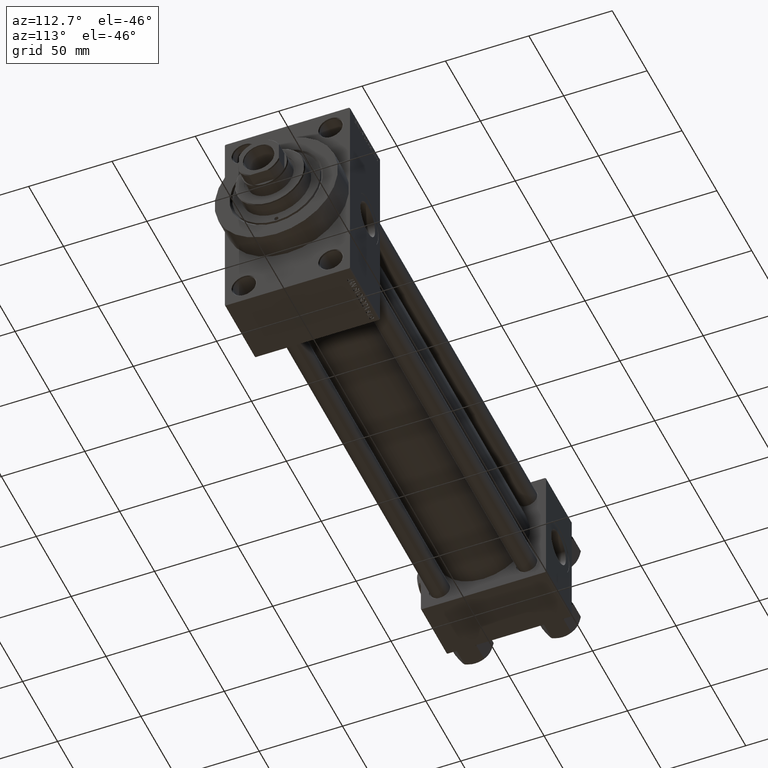
[diagram: clean part render]
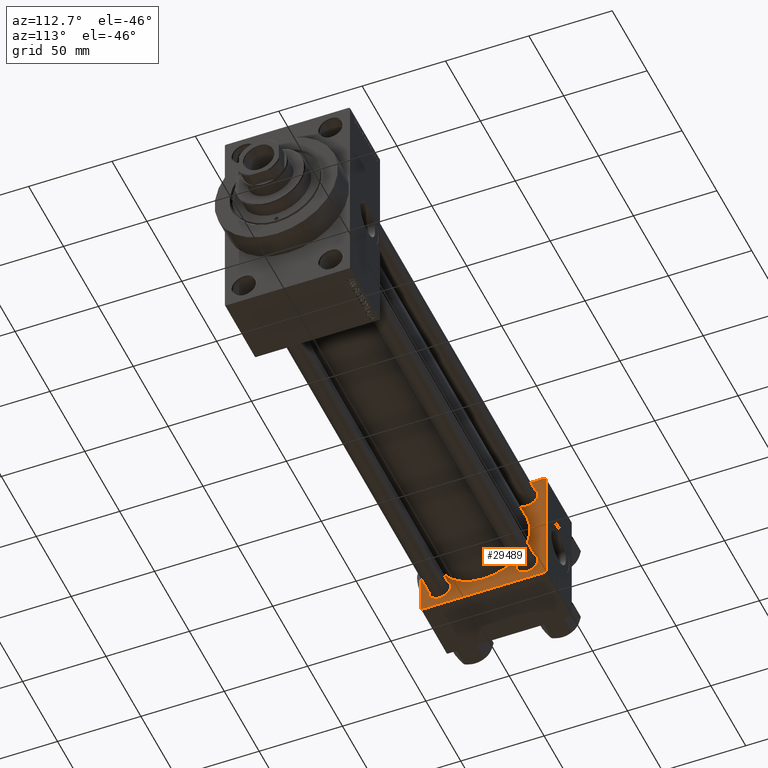
[diagram: same view with one face highlighted and labeled with its STEP entity id]
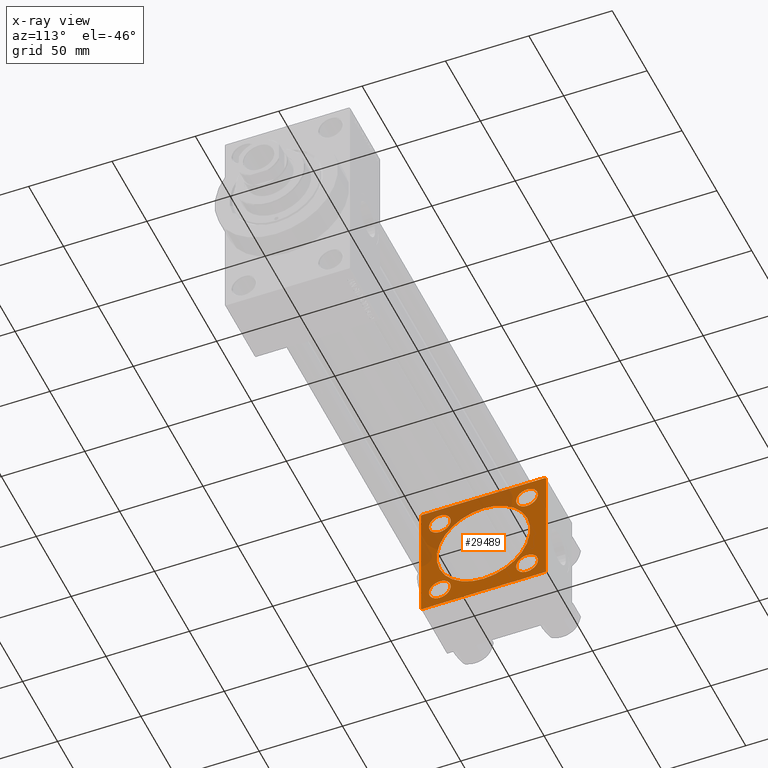
[diagram: x-ray of the same camera — body ghosted, the highlighted face saturated]
A machine part, auxiliary view. The second image highlights one B-rep face of the part: STEP entity #29489.
The next image is the same camera in x-ray: the body ghosted, the highlighted face saturated — about 32% of this face is hidden behind the body in this view.
In plain terms, the highlighted planar face has unit normal (-1, 0, 0).
Its self-contained STEP definition (entity closure, byte-faithful):
#659 = CARTESIAN_POINT ( 'NONE',  ( 37.00000000000000000, 37.49999999999999289, 37.50000000000000000 ) ) ;
#803 = LINE ( 'NONE', #44344, #23737 ) ;
#834 = EDGE_CURVE ( 'NONE', #8049, #10338, #43186, .T. ) ;
#1543 = EDGE_LOOP ( 'NONE', ( #32420, #48982 ) ) ;
#1641 = VECTOR ( 'NONE', #25768, 1000.000000000000000 ) ;
#1668 = CIRCLE ( 'NONE', #27077, 6.500000000000064837 ) ;
#2424 = DIRECTION ( 'NONE',  ( -1.000000000000000000, 0.000000000000000000, -0.000000000000000000 ) ) ;
#2526 = DIRECTION ( 'NONE',  ( -1.000000000000000000, 0.000000000000000000, -0.000000000000000000 ) ) ;
#2807 = CARTESIAN_POINT ( 'NONE',  ( 37.00000000000000000, 26.14999999999999858, 19.64999999999988489 ) ) ;
#3079 = CARTESIAN_POINT ( 'NONE',  ( 37.00000000000000000, 37.49999999999999289, -37.50000000000000000 ) ) ;
#4091 = DIRECTION ( 'NONE',  ( 0.000000000000000000, -1.000000000000000000, -9.251858538542971581E-17 ) ) ;
#4112 = CARTESIAN_POINT ( 'NONE',  ( 37.00000000000000711, -2.602085213965210642E-15, 0.000000000000000000 ) ) ;
#4435 = DIRECTION ( 'NONE',  ( 0.000000000000000000, 0.000000000000000000, 1.000000000000000000 ) ) ;
#4458 = VERTEX_POINT ( 'NONE', #32016 ) ;
#4847 = ORIENTED_EDGE ( 'NONE', *, *, #28262, .F. ) ;
#4908 = AXIS2_PLACEMENT_3D ( 'NONE', #14732, #45483, #21905 ) ;
#5409 = ORIENTED_EDGE ( 'NONE', *, *, #29959, .T. ) ;
#5530 = CARTESIAN_POINT ( 'NONE',  ( 37.00000000000000000, -37.00000000000002132, -37.50000000000000711 ) ) ;
#5825 = EDGE_LOOP ( 'NONE', ( #14337, #42625 ) ) ;
#6109 = DIRECTION ( 'NONE',  ( 0.000000000000000000, 0.000000000000000000, 1.000000000000000000 ) ) ;
#6264 = CARTESIAN_POINT ( 'NONE',  ( 37.00000000000000000, 26.14999999999999858, 26.15000000000000213 ) ) ;
#6298 = PLANE ( 'NONE',  #4908 ) ;
#6549 = FACE_BOUND ( 'NONE', #31008, .T. ) ;
#6802 = FACE_BOUND ( 'NONE', #1543, .T. ) ;
#7054 = EDGE_CURVE ( 'NONE', #31821, #33223, #47402, .T. ) ;
#7060 = EDGE_CURVE ( 'NONE', #27539, #15755, #39263, .T. ) ;
#7453 = LINE ( 'NONE', #14379, #24921 ) ;
#8049 = VERTEX_POINT ( 'NONE', #27716 ) ;
#8897 = CARTESIAN_POINT ( 'NONE',  ( 37.00000000000000000, -26.14999999999999147, -19.64999999999995239 ) ) ;
#9360 = ORIENTED_EDGE ( 'NONE', *, *, #22431, .T. ) ;
#9462 = DIRECTION ( 'NONE',  ( 0.000000000000000000, 0.000000000000000000, 1.000000000000000000 ) ) ;
#9575 = VECTOR ( 'NONE', #16528, 1000.000000000000000 ) ;
#10141 = FACE_BOUND ( 'NONE', #5825, .T. ) ;
#10198 = DIRECTION ( 'NONE',  ( 0.000000000000000000, 0.000000000000000000, 1.000000000000000000 ) ) ;
#10338 = VERTEX_POINT ( 'NONE', #21568 ) ;
#10553 = EDGE_LOOP ( 'NONE', ( #4847, #16266, #22756, #38840, #12642, #5409, #14144, #23131 ) ) ;
#10618 = ORIENTED_EDGE ( 'NONE', *, *, #13335, .T. ) ;
#11062 = VERTEX_POINT ( 'NONE', #26641 ) ;
#11078 = VERTEX_POINT ( 'NONE', #31230 ) ;
#11853 = DIRECTION ( 'NONE',  ( 0.000000000000000000, 0.000000000000000000, 1.000000000000000000 ) ) ;
#12267 = EDGE_CURVE ( 'NONE', #37107, #23136, #1668, .T. ) ;
#12357 = ORIENTED_EDGE ( 'NONE', *, *, #12267, .T. ) ;
#12642 = ORIENTED_EDGE ( 'NONE', *, *, #26712, .T. ) ;
#13169 = AXIS2_PLACEMENT_3D ( 'NONE', #40031, #32349, #4435 ) ;
#13335 = EDGE_CURVE ( 'NONE', #23136, #37107, #35269, .T. ) ;
#13718 = FACE_OUTER_BOUND ( 'NONE', #10553, .T. ) ;
#14144 = ORIENTED_EDGE ( 'NONE', *, *, #27709, .T. ) ;
#14337 = ORIENTED_EDGE ( 'NONE', *, *, #40085, .F. ) ;
#14379 = CARTESIAN_POINT ( 'NONE',  ( 37.00000000000000000, 36.99999999999999289, 37.50000000000000000 ) ) ;
#14732 = CARTESIAN_POINT ( 'NONE',  ( 37.00000000000000000, 0.000000000000000000, 0.000000000000000000 ) ) ;
#14857 = LINE ( 'NONE', #3079, #28570 ) ;
#14952 = EDGE_CURVE ( 'NONE', #21771, #4458, #28781, .T. ) ;
#15131 = LINE ( 'NONE', #15373, #37555 ) ;
#15373 = CARTESIAN_POINT ( 'NONE',  ( 37.00000000000000000, 37.49999999999999289, 37.50000000000000000 ) ) ;
#15381 = CARTESIAN_POINT ( 'NONE',  ( 37.00000000000000000, 26.14999999999999858, -19.64999999999988844 ) ) ;
#15571 = DIRECTION ( 'NONE',  ( 0.000000000000000000, 0.000000000000000000, 1.000000000000000000 ) ) ;
#15755 = VERTEX_POINT ( 'NONE', #15381 ) ;
#15811 = AXIS2_PLACEMENT_3D ( 'NONE', #6264, #2424, #11853 ) ;
#16096 = EDGE_CURVE ( 'NONE', #15755, #27539, #19810, .T. ) ;
#16138 = DIRECTION ( 'NONE',  ( 0.000000000000000000, 0.000000000000000000, 1.000000000000000000 ) ) ;
#16266 = ORIENTED_EDGE ( 'NONE', *, *, #27593, .T. ) ;
#16528 = DIRECTION ( 'NONE',  ( 0.000000000000000000, 0.000000000000000000, -1.000000000000000000 ) ) ;
#16917 = AXIS2_PLACEMENT_3D ( 'NONE', #23827, #35121, #47890 ) ;
#17291 = CARTESIAN_POINT ( 'NONE',  ( 37.00000000000000000, -26.14999999999999147, 32.65000000000007674 ) ) ;
#17866 = CARTESIAN_POINT ( 'NONE',  ( 37.00000000000000000, 37.49999999999999289, -36.99999999999998579 ) ) ;
#17890 = CARTESIAN_POINT ( 'NONE',  ( 37.00000000000000000, -26.14999999999999147, 26.15000000000000924 ) ) ;
#17953 = VECTOR ( 'NONE', #45015, 1000.000000000000114 ) ;
#18013 = VERTEX_POINT ( 'NONE', #29498 ) ;
#18393 = CARTESIAN_POINT ( 'NONE',  ( 37.00000000000000711, -2.602085213965210642E-15, 0.000000000000000000 ) ) ;
#18751 = VECTOR ( 'NONE', #38605, 1000.000000000000000 ) ;
#18966 = AXIS2_PLACEMENT_3D ( 'NONE', #43789, #20201, #9462 ) ;
#19403 = CARTESIAN_POINT ( 'NONE',  ( 37.00000000000000000, 26.14999999999999858, -26.15000000000000213 ) ) ;
#19449 = VERTEX_POINT ( 'NONE', #34826 ) ;
#19810 = CIRCLE ( 'NONE', #47612, 6.500000000000113687 ) ;
#20201 = DIRECTION ( 'NONE',  ( -1.000000000000000000, 0.000000000000000000, -0.000000000000000000 ) ) ;
#21544 = CIRCLE ( 'NONE', #15811, 6.500000000000113687 ) ;
#21568 = CARTESIAN_POINT ( 'NONE',  ( 37.00000000000000000, 37.49999999999999289, -36.99999999999998579 ) ) ;
#21771 = VERTEX_POINT ( 'NONE', #2807 ) ;
#21905 = DIRECTION ( 'NONE',  ( -0.000000000000000000, 0.000000000000000000, 1.000000000000000000 ) ) ;
#22159 = FACE_BOUND ( 'NONE', #23761, .T. ) ;
#22276 = DIRECTION ( 'NONE',  ( 0.000000000000000000, -1.000000000000000000, -9.251858538542972814E-17 ) ) ;
#22431 = EDGE_CURVE ( 'NONE', #19449, #46845, #37411, .T. ) ;
#22644 = CARTESIAN_POINT ( 'NONE',  ( 37.00000000000000711, 8.269258236473784371E-16, -28.00000000000000000 ) ) ;
#22756 = ORIENTED_EDGE ( 'NONE', *, *, #834, .F. ) ;
#23131 = ORIENTED_EDGE ( 'NONE', *, *, #32658, .T. ) ;
#23136 = VERTEX_POINT ( 'NONE', #17291 ) ;
#23737 = VECTOR ( 'NONE', #32047, 1000.000000000000114 ) ;
#23761 = EDGE_LOOP ( 'NONE', ( #24997, #48489 ) ) ;
#23827 = CARTESIAN_POINT ( 'NONE',  ( 37.00000000000000000, -26.14999999999999147, -26.15000000000000924 ) ) ;
#23989 = CIRCLE ( 'NONE', #42806, 28.00000000000000000 ) ;
#24921 = VECTOR ( 'NONE', #30752, 1000.000000000000114 ) ;
#24997 = ORIENTED_EDGE ( 'NONE', *, *, #14952, .T. ) ;
#25525 = VERTEX_POINT ( 'NONE', #25898 ) ;
#25768 = DIRECTION ( 'NONE',  ( 0.000000000000000000, 0.7071067811865524577, -0.7071067811865426878 ) ) ;
#25898 = CARTESIAN_POINT ( 'NONE',  ( 37.00000000000000000, -37.00000000000000711, 37.49999999999999289 ) ) ;
#26090 = CARTESIAN_POINT ( 'NONE',  ( 37.00000000000000000, 36.99999999999997868, -37.50000000000000000 ) ) ;
#26641 = CARTESIAN_POINT ( 'NONE',  ( 37.00000000000000000, 36.99999999999999289, 37.50000000000000000 ) ) ;
#26712 = EDGE_CURVE ( 'NONE', #11062, #25525, #15131, .T. ) ;
#27077 = AXIS2_PLACEMENT_3D ( 'NONE', #17890, #2526, #49137 ) ;
#27539 = VERTEX_POINT ( 'NONE', #40038 ) ;
#27593 = EDGE_CURVE ( 'NONE', #34580, #10338, #34014, .T. ) ;
#27709 = EDGE_CURVE ( 'NONE', #11078, #18013, #38102, .T. ) ;
#27716 = CARTESIAN_POINT ( 'NONE',  ( 37.00000000000000000, 37.49999999999999289, 37.00000000000000000 ) ) ;
#28262 = EDGE_CURVE ( 'NONE', #34580, #36522, #14857, .T. ) ;
#28304 = DIRECTION ( 'NONE',  ( -1.000000000000000000, 0.000000000000000000, -0.000000000000000000 ) ) ;
#28570 = VECTOR ( 'NONE', #22276, 1000.000000000000000 ) ;
#28781 = CIRCLE ( 'NONE', #18966, 6.500000000000113687 ) ;
#29489 = ADVANCED_FACE ( 'NONE', ( #37294, #6802, #6549, #22159, #10141, #13718 ), #6298, .F. ) ;
#29498 = CARTESIAN_POINT ( 'NONE',  ( 37.00000000000000000, -37.50000000000000000, -37.00000000000003553 ) ) ;
#29663 = DIRECTION ( 'NONE',  ( 1.000000000000000000, -0.000000000000000000, 0.000000000000000000 ) ) ;
#29959 = EDGE_CURVE ( 'NONE', #25525, #11078, #803, .T. ) ;
#30752 = DIRECTION ( 'NONE',  ( 0.000000000000000000, -0.7071067811865474617, 0.7071067811865474617 ) ) ;
#31008 = EDGE_LOOP ( 'NONE', ( #12357, #10618 ) ) ;
#31059 = AXIS2_PLACEMENT_3D ( 'NONE', #18393, #29663, #6109 ) ;
#31147 = CARTESIAN_POINT ( 'NONE',  ( 37.00000000000000000, -37.50000000000000711, 37.49999999999999289 ) ) ;
#31230 = CARTESIAN_POINT ( 'NONE',  ( 37.00000000000000000, -37.50000000000000711, 36.99999999999999289 ) ) ;
#31649 = DIRECTION ( 'NONE',  ( 0.000000000000000000, 0.000000000000000000, 1.000000000000000000 ) ) ;
#31727 = EDGE_CURVE ( 'NONE', #46845, #19449, #32827, .T. ) ;
#31821 = VERTEX_POINT ( 'NONE', #22644 ) ;
#32016 = CARTESIAN_POINT ( 'NONE',  ( 37.00000000000000000, 26.14999999999999858, 32.65000000000012648 ) ) ;
#32047 = DIRECTION ( 'NONE',  ( -0.000000000000000000, -0.7071067811865474617, -0.7071067811865474617 ) ) ;
#32116 = ORIENTED_EDGE ( 'NONE', *, *, #31727, .T. ) ;
#32349 = DIRECTION ( 'NONE',  ( -1.000000000000000000, 0.000000000000000000, -0.000000000000000000 ) ) ;
#32416 = CARTESIAN_POINT ( 'NONE',  ( 37.00000000000000000, -26.14999999999999147, -26.15000000000000924 ) ) ;
#32420 = ORIENTED_EDGE ( 'NONE', *, *, #7060, .T. ) ;
#32479 = CARTESIAN_POINT ( 'NONE',  ( 37.00000000000000000, -26.14999999999999147, 19.64999999999994529 ) ) ;
#32658 = EDGE_CURVE ( 'NONE', #18013, #36522, #40628, .T. ) ;
#32827 = CIRCLE ( 'NONE', #43458, 6.500000000000057732 ) ;
#33223 = VERTEX_POINT ( 'NONE', #35451 ) ;
#34014 = LINE ( 'NONE', #17866, #17953 ) ;
#34515 = CARTESIAN_POINT ( 'NONE',  ( 37.00000000000000000, 26.14999999999999858, -26.15000000000000213 ) ) ;
#34580 = VERTEX_POINT ( 'NONE', #26090 ) ;
#34826 = CARTESIAN_POINT ( 'NONE',  ( 37.00000000000000000, -26.14999999999999147, -32.65000000000006963 ) ) ;
#35044 = DIRECTION ( 'NONE',  ( -1.000000000000000000, 0.000000000000000000, -0.000000000000000000 ) ) ;
#35121 = DIRECTION ( 'NONE',  ( -1.000000000000000000, 0.000000000000000000, -0.000000000000000000 ) ) ;
#35160 = AXIS2_PLACEMENT_3D ( 'NONE', #34515, #45289, #10198 ) ;
#35269 = CIRCLE ( 'NONE', #13169, 6.500000000000064837 ) ;
#35451 = CARTESIAN_POINT ( 'NONE',  ( 37.00000000000000711, -2.602085213965210642E-15, 28.00000000000000000 ) ) ;
#36522 = VERTEX_POINT ( 'NONE', #43813 ) ;
#37107 = VERTEX_POINT ( 'NONE', #32479 ) ;
#37294 = FACE_BOUND ( 'NONE', #42877, .T. ) ;
#37411 = CIRCLE ( 'NONE', #16917, 6.500000000000057732 ) ;
#37555 = VECTOR ( 'NONE', #4091, 1000.000000000000000 ) ;
#38102 = LINE ( 'NONE', #31147, #18751 ) ;
#38605 = DIRECTION ( 'NONE',  ( 0.000000000000000000, 9.251858538542971581E-17, -1.000000000000000000 ) ) ;
#38840 = ORIENTED_EDGE ( 'NONE', *, *, #42753, .T. ) ;
#39263 = CIRCLE ( 'NONE', #35160, 6.500000000000113687 ) ;
#39539 = EDGE_CURVE ( 'NONE', #4458, #21771, #21544, .T. ) ;
#40031 = CARTESIAN_POINT ( 'NONE',  ( 37.00000000000000000, -26.14999999999999147, 26.15000000000000924 ) ) ;
#40038 = CARTESIAN_POINT ( 'NONE',  ( 37.00000000000000000, 26.14999999999999858, -32.65000000000011937 ) ) ;
#40085 = EDGE_CURVE ( 'NONE', #33223, #31821, #23989, .T. ) ;
#40628 = LINE ( 'NONE', #5530, #1641 ) ;
#42625 = ORIENTED_EDGE ( 'NONE', *, *, #7054, .F. ) ;
#42753 = EDGE_CURVE ( 'NONE', #8049, #11062, #7453, .T. ) ;
#42806 = AXIS2_PLACEMENT_3D ( 'NONE', #4112, #43299, #16138 ) ;
#42877 = EDGE_LOOP ( 'NONE', ( #9360, #32116 ) ) ;
#43186 = LINE ( 'NONE', #659, #9575 ) ;
#43299 = DIRECTION ( 'NONE',  ( 1.000000000000000000, -0.000000000000000000, 0.000000000000000000 ) ) ;
#43458 = AXIS2_PLACEMENT_3D ( 'NONE', #32416, #28304, #31649 ) ;
#43789 = CARTESIAN_POINT ( 'NONE',  ( 37.00000000000000000, 26.14999999999999858, 26.15000000000000213 ) ) ;
#43813 = CARTESIAN_POINT ( 'NONE',  ( 37.00000000000000000, -37.00000000000002132, -37.50000000000000711 ) ) ;
#44344 = CARTESIAN_POINT ( 'NONE',  ( 37.00000000000000000, -37.50000000000000711, 36.99999999999999289 ) ) ;
#45015 = DIRECTION ( 'NONE',  ( -0.000000000000000000, 0.7071067811865474617, 0.7071067811865474617 ) ) ;
#45289 = DIRECTION ( 'NONE',  ( -1.000000000000000000, 0.000000000000000000, -0.000000000000000000 ) ) ;
#45483 = DIRECTION ( 'NONE',  ( -1.000000000000000000, 0.000000000000000000, -0.000000000000000000 ) ) ;
#46845 = VERTEX_POINT ( 'NONE', #8897 ) ;
#47402 = CIRCLE ( 'NONE', #31059, 28.00000000000000000 ) ;
#47612 = AXIS2_PLACEMENT_3D ( 'NONE', #19403, #35044, #15571 ) ;
#47890 = DIRECTION ( 'NONE',  ( 0.000000000000000000, 0.000000000000000000, 1.000000000000000000 ) ) ;
#48489 = ORIENTED_EDGE ( 'NONE', *, *, #39539, .T. ) ;
#48982 = ORIENTED_EDGE ( 'NONE', *, *, #16096, .T. ) ;
#49137 = DIRECTION ( 'NONE',  ( 0.000000000000000000, 0.000000000000000000, 1.000000000000000000 ) ) ;